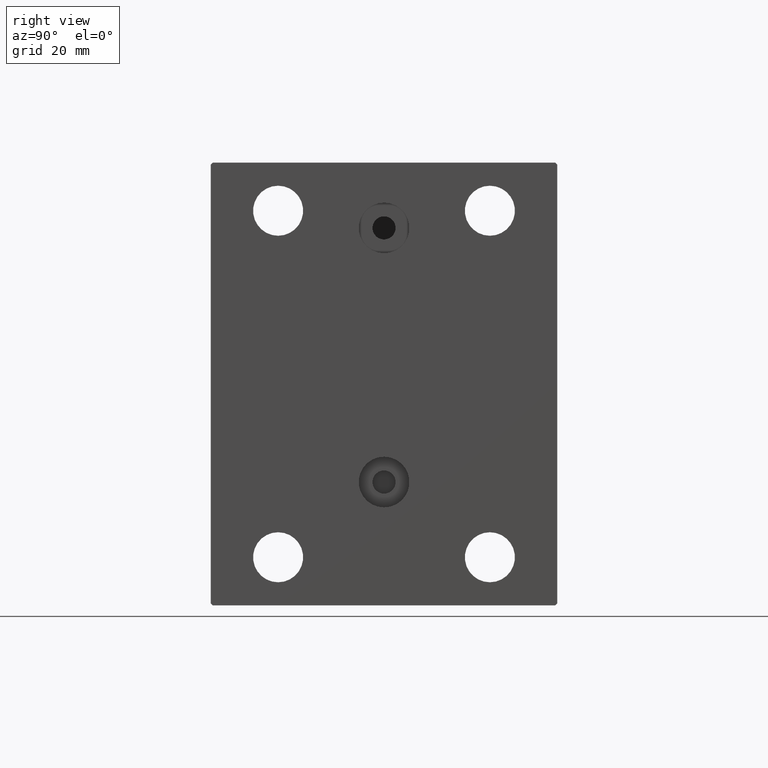
[diagram: clean part render]
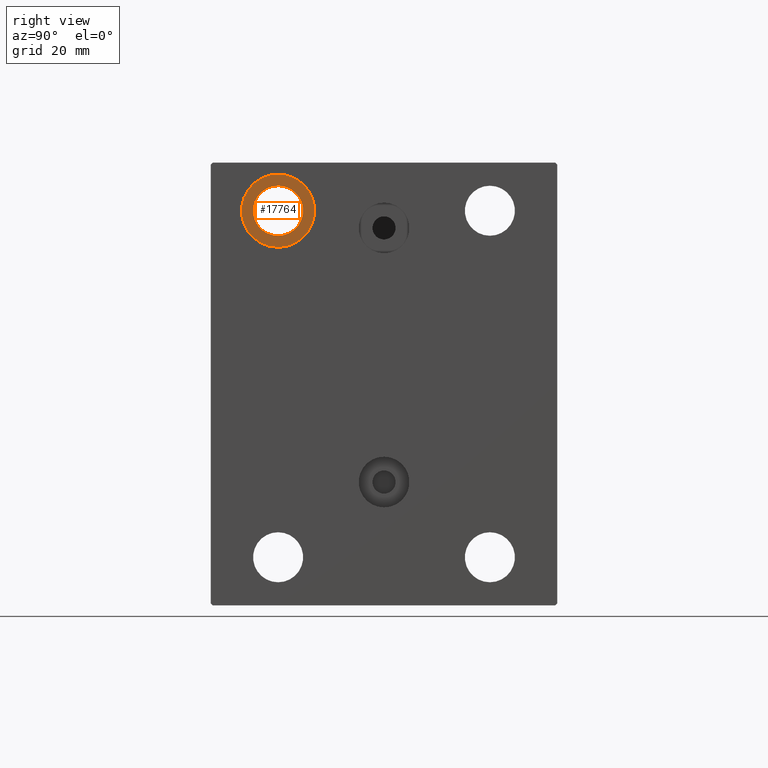
[diagram: same view with one face highlighted and labeled with its STEP entity id]
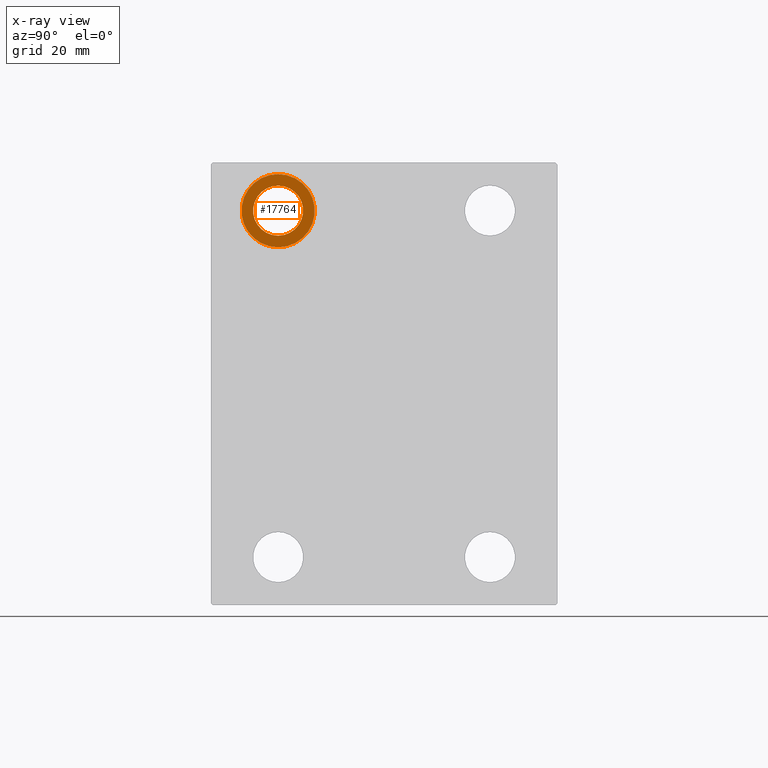
[diagram: x-ray of the same camera — body ghosted, the highlighted face saturated]
A machine part, right view. The second image highlights one B-rep face of the part: STEP entity #17764.
The next image is the same camera in x-ray: the body ghosted, the highlighted face saturated — about 0% of this face is hidden behind the body in this view.
In plain terms, the highlighted planar face has unit normal (1, 0, 0).
Its self-contained STEP definition (entity closure, byte-faithful):
#400 = CIRCLE ( 'NONE', #6750, 6.499999999999999112 ) ;
#2852 = FACE_OUTER_BOUND ( 'NONE', #29677, .T. ) ;
#3504 = DIRECTION ( 'NONE',  ( 0.000000000000000000, 0.000000000000000000, 1.000000000000000000 ) ) ;
#4257 = EDGE_CURVE ( 'NONE', #16161, #11735, #42704, .T. ) ;
#4561 = DIRECTION ( 'NONE',  ( 0.000000000000000000, 0.000000000000000000, -1.000000000000000000 ) ) ;
#5298 = ORIENTED_EDGE ( 'NONE', *, *, #4257, .F. ) ;
#6214 = DIRECTION ( 'NONE',  ( -1.000000000000000000, -0.000000000000000000, -0.000000000000000000 ) ) ;
#6642 = VERTEX_POINT ( 'NONE', #12268 ) ;
#6750 = AXIS2_PLACEMENT_3D ( 'NONE', #14760, #41339, #4561 ) ;
#9545 = ORIENTED_EDGE ( 'NONE', *, *, #31654, .F. ) ;
#10374 = ORIENTED_EDGE ( 'NONE', *, *, #36020, .T. ) ;
#10592 = CIRCLE ( 'NONE', #33235, 9.500000000000001776 ) ;
#11735 = VERTEX_POINT ( 'NONE', #16572 ) ;
#12268 = CARTESIAN_POINT ( 'NONE',  ( 95.00000000000000000, -27.49999999999998934, 51.50000000000000711 ) ) ;
#13073 = DIRECTION ( 'NONE',  ( 0.000000000000000000, 0.000000000000000000, 1.000000000000000000 ) ) ;
#13255 = CARTESIAN_POINT ( 'NONE',  ( 95.00000000000000000, 0.000000000000000000, 0.000000000000000000 ) ) ;
#13875 = DIRECTION ( 'NONE',  ( 0.000000000000000000, 0.000000000000000000, -1.000000000000000000 ) ) ;
#14760 = CARTESIAN_POINT ( 'NONE',  ( 95.00000000000000000, -27.49999999999998934, 45.00000000000000711 ) ) ;
#16161 = VERTEX_POINT ( 'NONE', #41957 ) ;
#16572 = CARTESIAN_POINT ( 'NONE',  ( 95.00000000000000000, -27.49999999999998934, 35.50000000000000711 ) ) ;
#16841 = DIRECTION ( 'NONE',  ( 0.000000000000000000, 0.000000000000000000, 1.000000000000000000 ) ) ;
#17764 = ADVANCED_FACE ( 'NONE', ( #2852, #34057 ), #26984, .T. ) ;
#19039 = AXIS2_PLACEMENT_3D ( 'NONE', #27612, #41337, #13875 ) ;
#22831 = DIRECTION ( 'NONE',  ( -1.000000000000000000, -0.000000000000000000, -0.000000000000000000 ) ) ;
#24100 = DIRECTION ( 'NONE',  ( 1.000000000000000000, 0.000000000000000000, -0.000000000000000000 ) ) ;
#26984 = PLANE ( 'NONE',  #34406 ) ;
#27612 = CARTESIAN_POINT ( 'NONE',  ( 95.00000000000000000, -27.49999999999998934, 45.00000000000000711 ) ) ;
#28516 = VERTEX_POINT ( 'NONE', #30324 ) ;
#29297 = EDGE_CURVE ( 'NONE', #28516, #6642, #32469, .T. ) ;
#29677 = EDGE_LOOP ( 'NONE', ( #9545, #5298 ) ) ;
#30324 = CARTESIAN_POINT ( 'NONE',  ( 95.00000000000000000, -27.49999999999998934, 38.50000000000000711 ) ) ;
#30641 = AXIS2_PLACEMENT_3D ( 'NONE', #32571, #22831, #13073 ) ;
#31654 = EDGE_CURVE ( 'NONE', #11735, #16161, #10592, .T. ) ;
#32469 = CIRCLE ( 'NONE', #19039, 6.499999999999999112 ) ;
#32571 = CARTESIAN_POINT ( 'NONE',  ( 95.00000000000000000, -27.49999999999998934, 45.00000000000000711 ) ) ;
#33014 = EDGE_LOOP ( 'NONE', ( #10374, #38384 ) ) ;
#33235 = AXIS2_PLACEMENT_3D ( 'NONE', #37443, #6214, #16841 ) ;
#34057 = FACE_BOUND ( 'NONE', #33014, .T. ) ;
#34406 = AXIS2_PLACEMENT_3D ( 'NONE', #13255, #24100, #3504 ) ;
#36020 = EDGE_CURVE ( 'NONE', #6642, #28516, #400, .T. ) ;
#37443 = CARTESIAN_POINT ( 'NONE',  ( 95.00000000000000000, -27.49999999999998934, 45.00000000000000711 ) ) ;
#38384 = ORIENTED_EDGE ( 'NONE', *, *, #29297, .T. ) ;
#41337 = DIRECTION ( 'NONE',  ( -1.000000000000000000, -0.000000000000000000, -0.000000000000000000 ) ) ;
#41339 = DIRECTION ( 'NONE',  ( -1.000000000000000000, -0.000000000000000000, -0.000000000000000000 ) ) ;
#41957 = CARTESIAN_POINT ( 'NONE',  ( 95.00000000000000000, -27.49999999999998934, 54.50000000000000711 ) ) ;
#42704 = CIRCLE ( 'NONE', #30641, 9.500000000000001776 ) ;